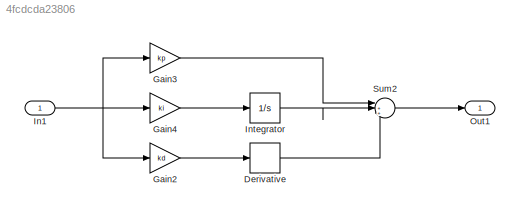
MODEL slx_4fcdcda23806
KIND model
CONFIG AbsTol = auto
CONFIG EnableMultiTasking = off
CONFIG FixedStep = auto
CONFIG MaxStep = auto
CONFIG MinStep = auto
CONFIG PreLoadFcn = kd = -0.0152524604;\nki = 0.087984779779;\nkp = 0.669524552;
CONFIG RelTol = 1e-3
CONFIG SampleTimeConstraint = Unconstrained
CONFIG SolverName = VariableStepAuto
CONFIG StartTime = 0.0
CONFIG StopTime = 10.0
BLOCK [Derivative] Derivative
BLOCK [Gain] Gain2
  Gain = kd
BLOCK [Gain] Gain3
  Gain = kp
BLOCK [Gain] Gain4
  Gain = ki
BLOCK [Inport] In1
  OutDataTypeStr = double
  PortDimensions = 1
  SampleTime = 0
  SamplingMode = Sample based
  SignalType = real
BLOCK [Integrator] Integrator
  Ports = [1, 1]
BLOCK [Outport] Out1
  OutDataTypeStr = double
  PortDimensions = 1
  SampleTime = 0
  SamplingMode = Sample based
  SignalType = real
BLOCK [Sum] Sum2
  Inputs = |+++
  Ports = [3, 1]
LINE Derivative:1 -> Sum2:3
LINE Gain2:1 -> Derivative:1
LINE Gain3:1 -> Sum2:1
LINE Gain4:1 -> Integrator:1
NET In1:1 -> Gain2:1, Gain3:1, Gain4:1
LINE Integrator:1 -> Sum2:2
LINE Sum2:1 -> Out1:1
note: NET lines group one-source signal fan-out (src -> all destinations, sorted); 1:1 wires keep LINE
